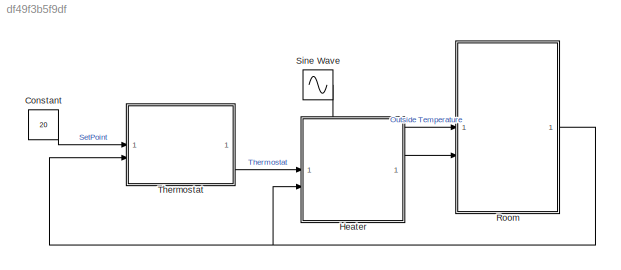
MODEL slx_df49f3b5f9df
KIND model
CONFIG AbsTol = auto
CONFIG EnableMultiTasking = off
CONFIG FixedStep = auto
CONFIG MaxStep = auto
CONFIG MinStep = auto
CONFIG RelTol = 1e-3
CONFIG SampleTimeConstraint = Unconstrained
CONFIG SolverName = VariableStepAuto
CONFIG StartTime = 0.0
CONFIG StopTime = 24
WORKSPACE source: mxarray member
WORKSPACE M_heater = 3600
WORKSPACE R_equivalent = 4.329e-07
WORKSPACE T_heater = 50
WORKSPACE T_roomIC = 20
WORKSPACE c_air = 1005.4
WORKSPACE m_room_air = 1474
BLOCK [Constant] Constant
  Value = 20
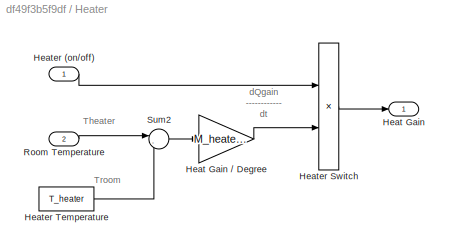
BLOCK [SubSystem] Heater
BLOCK [Outport] Heater/Heat Gain
  VectorParamsAs1DForOutWhenUnconnected = off
BLOCK [Gain] Heater/Heat Gain // Degree
  Gain = M_heater*c_air
BLOCK [Inport] Heater/Heater (on//off)
BLOCK [Product] Heater/Heater Switch
  RndMeth = Zero
BLOCK [Constant] Heater/Heater Temperature
  Value = T_heater
BLOCK [Inport] Heater/Room Temperature
  Port = 2
BLOCK [Sum] Heater/Sum2
  Inputs = |-+
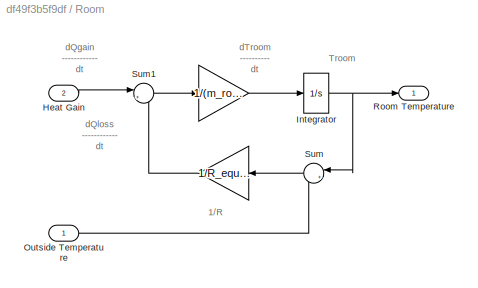
BLOCK [SubSystem] Room
BLOCK [Gain] Room/ 
  Gain = 1/R_equivalent
  OutDataTypeStr = Inherit: Same as input
  ParamDataTypeStr = Inherit: Same as input
  SaturateOnIntegerOverflow = on
BLOCK [Gain] Room/  
  Gain = 1/(m_room_air*c_air)
  OutDataTypeStr = Inherit: Same as input
  ParamDataTypeStr = Inherit: Same as input
  SaturateOnIntegerOverflow = on
BLOCK [Inport] Room/Heat Gain 
  Port = 2
BLOCK [Integrator] Room/Integrator
  InitialCondition = T_roomIC
BLOCK [Inport] Room/Outside Temperature
BLOCK [Outport] Room/Room Temperature
  VectorParamsAs1DForOutWhenUnconnected = off
BLOCK [Sum] Room/Sum
  Inputs = |+-
BLOCK [Sum] Room/Sum1
  InputSameDT = on
  Inputs = |+-
  OutDataTypeStr = Inherit: Same as first input
  SaturateOnIntegerOverflow = on
BLOCK [Sin] Sine Wave
  Amplitude = 5
  Bias = 19
  Frequency = 2*pi/24
  Phase = 180
  SampleTime = 0
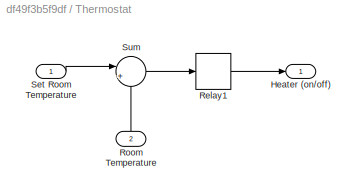
BLOCK [SubSystem] Thermostat
BLOCK [Inport] Thermostat/    Room Temperature
  NameLocation = right
  Port = 2
BLOCK [Outport] Thermostat/Heater (on//off)
  VectorParamsAs1DForOutWhenUnconnected = off
BLOCK [Relay] Thermostat/Relay1
  OffSwitchValue = -2
  OnSwitchValue = 2
BLOCK [Inport] Thermostat/Set Room Temperature
BLOCK [Sum] Thermostat/Sum
  InputSameDT = on
  Inputs = |+-
  OutDataTypeStr = Inherit: Same as first input
  SaturateOnIntegerOverflow = on
ANNOTATION Heater: Theater
ANNOTATION Heater: Troom
ANNOTATION Heater: dQgain ------------ dt
ANNOTATION Room: 1/R
ANNOTATION Room: Troom
ANNOTATION Room: dQgain ------------ dt
ANNOTATION Room: dQloss ------------ dt
ANNOTATION Room: dTroom ---------- dt
LINE Constant:1 -> Thermostat:1
LINE Heater/Heat Gain // Degree:1 -> Heater/Heater Switch:2
LINE Heater/Heater (on//off):1 -> Heater/Heater Switch:1
LINE Heater/Heater Switch:1 -> Heater/Heat Gain:1
LINE Heater/Heater Temperature:1 -> Heater/Sum2:2
LINE Heater/Room Temperature:1 -> Heater/Sum2:1
LINE Heater/Sum2:1 -> Heater/Heat Gain // Degree:1
LINE Heater:1 -> Room:2
LINE Room/  :1 -> Room/Integrator:1
LINE Room/ :1 -> Room/Sum1:2
LINE Room/Heat Gain :1 -> Room/Sum1:1
NET Room/Integrator:1 -> Room/Room Temperature:1, Room/Sum:1
LINE Room/Outside Temperature:1 -> Room/Sum:2
LINE Room/Sum1:1 -> Room/  :1
LINE Room/Sum:1 -> Room/ :1
NET Room:1 -> Heater:2, Thermostat:2
LINE Sine Wave:1 -> Room:1
LINE Thermostat/    Room Temperature:1 -> Thermostat/Sum:2
LINE Thermostat/Relay1:1 -> Thermostat/Heater (on//off):1
LINE Thermostat/Set Room Temperature:1 -> Thermostat/Sum:1
LINE Thermostat/Sum:1 -> Thermostat/Relay1:1
LINE Thermostat:1 -> Heater:1
note: NET lines group one-source signal fan-out (src -> all destinations, sorted); 1:1 wires keep LINE
